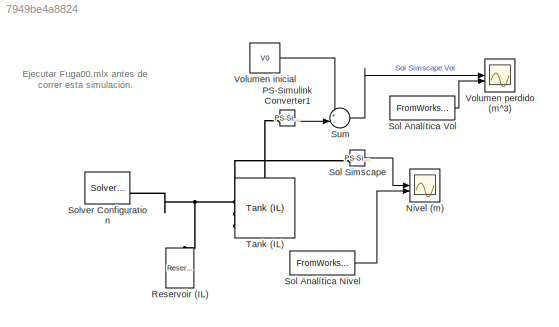
MODEL slx_7949be4a8824
KIND model
CONFIG AbsTol = auto
CONFIG EnableMultiTasking = off
CONFIG FixedStep = auto
CONFIG MaxStep = auto
CONFIG MinStep = auto
CONFIG RelTol = 1e-3
CONFIG SampleTimeConstraint = Unconstrained
CONFIG SolverName = VariableStepAuto
CONFIG StartTime = 0.0
CONFIG StopTime = 3600*tf
BLOCK [Scope] Nivel (m)
  Floating = off
  NumInputPorts = 2
  ScopeSpecificationString = Simulink.scopes.TimeScopeBlockCfg('CurrentConfiguration', extmgr.ConfigurationSet(extmgr.Configuration('Core','General UI',true),extmgr.Configuration('Core','Source UI',true),extmgr.Configuration('Sources','WiredSimulink',true),extmgr.Configuration('Visuals','Time Domain',true,'SerializedDisplays',{struct('MinYLimReal','-0.28125','MaxYLimReal','2.53125','YLabelReal','','MinYLimMag','0.00000','MaxY...<+1716ch>
BLOCK [Reference] PS-Simulink Converter1  REF=nesl_utility/PS-Simulink
Converter
  SourceBlock = nesl_utility/PS-Simulink\nConverter
  SourceType = PS-Simulink\nConverter
BLOCK [Reference] Reservoir (IL)  REF=fl_lib/Isothermal Liquid/Elements/Reservoir (IL)
  NameLocation = right
  SourceBlock = fl_lib/Isothermal Liquid/Elements/Reservoir (IL)
  SourceType = Reservoir (IL)
BLOCK [FromWorkspace] Sol Analítica Nivel
  VariableName = siminh
BLOCK [FromWorkspace] Sol Analítica Vol
  VariableName = siminV
BLOCK [Reference] Sol Simscape  REF=nesl_utility/PS-Simulink
Converter
  SourceBlock = nesl_utility/PS-Simulink\nConverter
  SourceType = PS-Simulink\nConverter
BLOCK [Reference] Solver Configuration  REF=nesl_utility/Solver
Configuration
  SourceBlock = nesl_utility/Solver\nConfiguration
  SourceType = Solver\nConfiguration
BLOCK [Sum] Sum
  Inputs = +-|
BLOCK [Reference] Tank (IL)  REF=SimscapeFluids_lib/Isothermal Liquid/Tanks & Accumulators/Tank (IL)
  SourceBlock = SimscapeFluids_lib/Isothermal Liquid/Tanks & Accumulators/Tank (IL)
  SourceType = Tank (IL)
BLOCK [Constant] Volumen inicial
  Value = V0
BLOCK [Scope] Volumen perdido (m^3)
  Floating = off
  NumInputPorts = 2
  ScopeSpecificationString = Simulink.scopes.TimeScopeBlockCfg('CurrentConfiguration', extmgr.ConfigurationSet(extmgr.Configuration('Core','General UI',true),extmgr.Configuration('Core','Source UI',true),extmgr.Configuration('Sources','WiredSimulink',true,'DataLoggingVariableName','ScopeData1'),extmgr.Configuration('Visuals','Time Domain',true,'SerializedDisplays',{struct('MinYLimReal','-88.35729','MaxYLimReal','795.21564','Y...<+1659ch>
ANNOTATION (root): Ejecutar Fuga00.mlx antes de correr esta simulación.
LINE PS-Simulink Converter1:1 -> Sum:2
LINE Sol Analítica Nivel:1 -> Nivel (m):2
LINE Sol Analítica Vol:1 -> Volumen perdido (m^3):2
LINE Sol Simscape:1 -> Nivel (m):1
LINE Sum:1 -> Volumen perdido (m^3):1
LINE Volumen inicial:1 -> Sum:1
PLINE PS-Simulink Converter1:LConn1 -- Tank (IL):LConn2
PNET net1: Reservoir (IL):LConn1 -- Solver Configuration:RConn1 -- Tank (IL):LConn1
PLINE Sol Simscape:LConn1 -- Tank (IL):LConn3
note: PNET lines group multi-terminal physical nets as a canonical sorted terminal list (undirected conserving connections); 2-terminal nets keep the pairwise PLINE form
